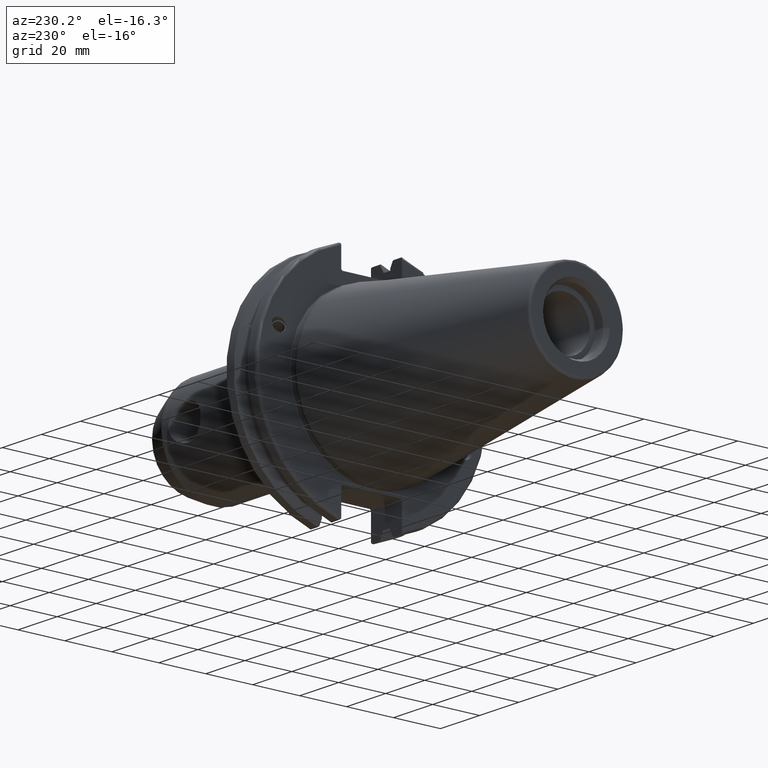
[diagram: clean part render]
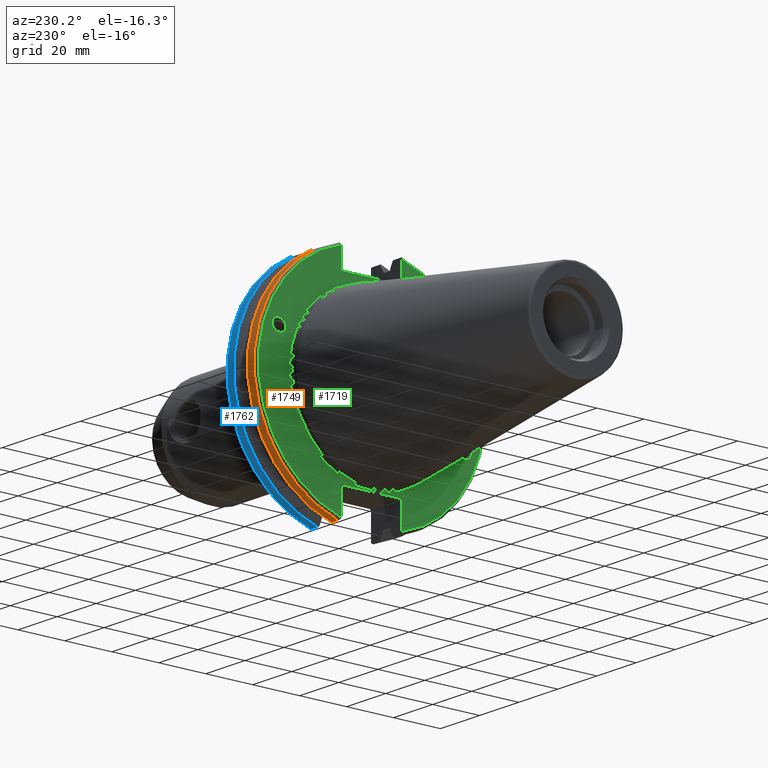
[diagram: same view with three faces highlighted in distinct colors, each labeled with its STEP entity id]
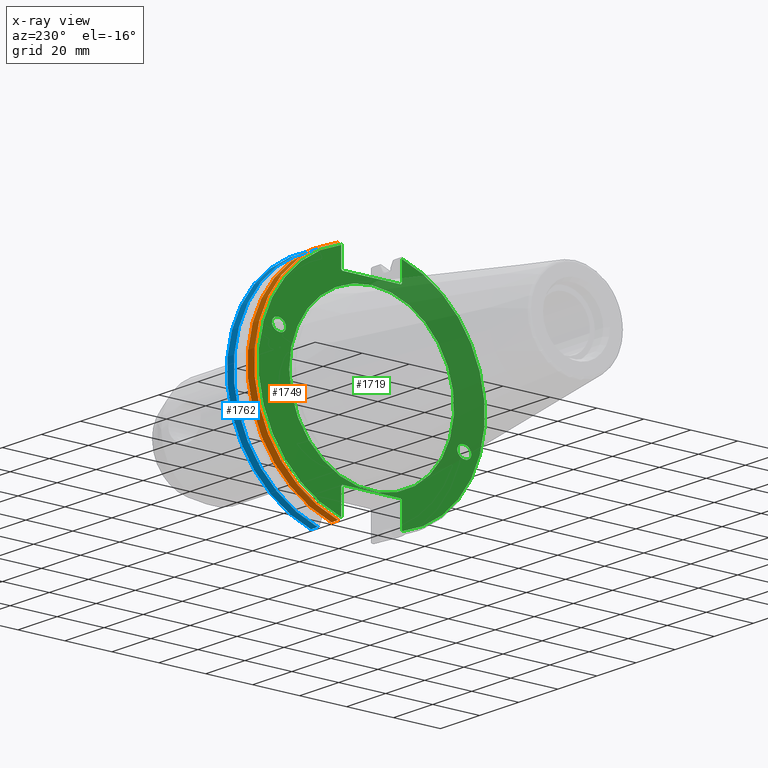
[diagram: x-ray of the same camera — body ghosted, the three highlighted faces saturated]
A machine part, auxiliary view with three faces highlighted in distinct colors.
The next image is the same camera in x-ray (body ghosted, the three faces saturated) — at least one of them is partly hidden behind the body in this view.
Their STEP definitions:

[orange] entity #1749 — the highlighted cylindrical surface (partial cylindrical patch) has radius 49.2125 mm, axis along (1, 0, 0).
#191=LINE('',#3523,#285);
#203=LINE('',#3579,#297);
#285=VECTOR('',#2350,10.);
#297=VECTOR('',#2410,10.);
#387=CIRCLE('',#1926,49.2125);
#402=CIRCLE('',#1959,49.2125);
#435=CYLINDRICAL_SURFACE('',#1958,49.2125);
#513=FACE_OUTER_BOUND('',#621,.T.);
#621=EDGE_LOOP('',(#1600,#1601,#1602,#1603));
#851=VERTEX_POINT('',#3496);
#852=VERTEX_POINT('',#3505);
#853=VERTEX_POINT('',#3522);
#864=VERTEX_POINT('',#3575);
#1092=EDGE_CURVE('',#851,#852,#387,.T.);
#1095=EDGE_CURVE('',#852,#853,#191,.T.);
#1120=EDGE_CURVE('',#864,#851,#203,.T.);
#1127=EDGE_CURVE('',#853,#864,#402,.T.);
#1600=ORIENTED_EDGE('',*,*,#1092,.F.);
#1601=ORIENTED_EDGE('',*,*,#1120,.F.);
#1602=ORIENTED_EDGE('',*,*,#1127,.F.);
#1603=ORIENTED_EDGE('',*,*,#1095,.F.);
#1749=ADVANCED_FACE('',(#513),#435,.T.);
#1926=AXIS2_PLACEMENT_3D('',#3506,#2346,#2347);
#1958=AXIS2_PLACEMENT_3D('',#3593,#2425,#2426);
#1959=AXIS2_PLACEMENT_3D('',#3594,#2427,#2428);
#2346=DIRECTION('center_axis',(-1.,0.,0.));
#2347=DIRECTION('ref_axis',(0.,1.,-6.12323399573677E-17));
#2350=DIRECTION('',(1.,0.,0.));
#2410=DIRECTION('',(-1.,0.,0.));
#2425=DIRECTION('center_axis',(1.,0.,0.));
#2426=DIRECTION('ref_axis',(0.,1.,0.));
#2427=DIRECTION('center_axis',(1.,0.,0.));
#2428=DIRECTION('ref_axis',(0.,0.,-1.));
#3496=CARTESIAN_POINT('',(4.175,13.4317035994433,47.3440544806494));
#3505=CARTESIAN_POINT('',(4.175,13.4317035994433,-47.3440544806494));
#3506=CARTESIAN_POINT('Origin',(4.175,0.,0.));
#3522=CARTESIAN_POINT('',(7.60799096595127,13.4317035994433,-47.3440544806494));
#3523=CARTESIAN_POINT('',(5.39149548297564,13.4317035994433,-47.3440544806494));
#3575=CARTESIAN_POINT('',(7.60799096595127,13.4317035994433,47.3440544806494));
#3579=CARTESIAN_POINT('',(5.39149548297564,13.4317035994433,47.3440544806494));
#3593=CARTESIAN_POINT('Origin',(5.39149548297564,0.,0.));
#3594=CARTESIAN_POINT('Origin',(7.60799096595127,0.,0.));

[blue] entity #1762 — the highlighted cylindrical surface (partial cylindrical patch) has radius 49.2125 mm, axis along (1, 0, 0).
#174=LINE('',#3369,#268);
#202=LINE('',#3573,#296);
#268=VECTOR('',#2305,10.);
#296=VECTOR('',#2407,10.);
#356=CIRCLE('',#1869,49.2125);
#383=CIRCLE('',#1912,49.2125);
#439=CYLINDRICAL_SURFACE('',#1982,49.2125);
#526=FACE_OUTER_BOUND('',#635,.T.);
#635=EDGE_LOOP('',(#1668,#1669,#1670,#1671));
#786=VERTEX_POINT('',#3221);
#787=VERTEX_POINT('',#3225);
#828=VERTEX_POINT('',#3348);
#829=VERTEX_POINT('',#3357);
#1000=EDGE_CURVE('',#787,#786,#356,.T.);
#1054=EDGE_CURVE('',#828,#829,#383,.T.);
#1057=EDGE_CURVE('',#787,#828,#174,.T.);
#1118=EDGE_CURVE('',#829,#786,#202,.T.);
#1668=ORIENTED_EDGE('',*,*,#1054,.F.);
#1669=ORIENTED_EDGE('',*,*,#1057,.F.);
#1670=ORIENTED_EDGE('',*,*,#1000,.T.);
#1671=ORIENTED_EDGE('',*,*,#1118,.F.);
#1762=ADVANCED_FACE('',(#526),#439,.T.);
#1869=AXIS2_PLACEMENT_3D('',#3226,#2193,#2194);
#1912=AXIS2_PLACEMENT_3D('',#3358,#2300,#2301);
#1982=AXIS2_PLACEMENT_3D('',#3624,#2476,#2477);
#2193=DIRECTION('center_axis',(1.,0.,0.));
#2194=DIRECTION('ref_axis',(0.,0.,-1.));
#2300=DIRECTION('center_axis',(1.,0.,0.));
#2301=DIRECTION('ref_axis',(0.,1.,-6.12323399573677E-17));
#2305=DIRECTION('',(1.,0.,0.));
#2407=DIRECTION('',(-1.,0.,0.));
#2476=DIRECTION('center_axis',(1.,0.,0.));
#2477=DIRECTION('ref_axis',(0.,1.,0.));
#3221=CARTESIAN_POINT('',(14.6602090340487,13.4317035994433,47.3440544806494));
#3225=CARTESIAN_POINT('',(14.6602090340487,13.4317035994433,-47.3440544806494));
#3226=CARTESIAN_POINT('Origin',(14.6602090340487,0.,0.));
#3348=CARTESIAN_POINT('',(18.05,13.4317035994433,-47.3440544806494));
#3357=CARTESIAN_POINT('',(18.05,13.4317035994433,47.3440544806494));
#3358=CARTESIAN_POINT('Origin',(18.05,0.,0.));
#3369=CARTESIAN_POINT('',(16.8551045170244,13.4317035994433,-47.3440544806494));
#3573=CARTESIAN_POINT('',(16.8551045170244,13.4317035994433,47.3440544806494));
#3624=CARTESIAN_POINT('Origin',(16.8551045170244,0.,0.));

[green] entity #1719 — the highlighted planar face has unit normal (-1, 0, 0).
#31=ELLIPSE('',#1848,3.05193647190364,2.5);
#32=ELLIPSE('',#1887,3.05193647190364,2.5);
#72=FACE_BOUND('',#588,.T.);
#73=FACE_BOUND('',#589,.T.);
#74=FACE_BOUND('',#590,.T.);
#90=PLANE('',#1905);
#162=LINE('',#3307,#256);
#163=LINE('',#3309,#257);
#164=LINE('',#3311,#258);
#165=LINE('',#3313,#259);
#166=LINE('',#3315,#260);
#167=LINE('',#3319,#261);
#168=LINE('',#3321,#262);
#169=LINE('',#3323,#263);
#170=LINE('',#3325,#264);
#171=LINE('',#3326,#265);
#256=VECTOR('',#2279,10.);
#257=VECTOR('',#2280,10.);
#258=VECTOR('',#2281,10.);
#259=VECTOR('',#2282,10.);
#260=VECTOR('',#2283,10.);
#261=VECTOR('',#2286,10.);
#262=VECTOR('',#2287,10.);
#263=VECTOR('',#2288,10.);
#264=VECTOR('',#2289,10.);
#265=VECTOR('',#2290,10.);
#375=CIRCLE('',#1901,35.125);
#376=CIRCLE('',#1902,35.125);
#379=CIRCLE('',#1906,48.2125);
#380=CIRCLE('',#1907,48.2125);
#483=FACE_OUTER_BOUND('',#587,.T.);
#587=EDGE_LOOP('',(#1417,#1418,#1419,#1420,#1421,#1422,#1423,#1424,#1425,
#1426,#1427,#1428));
#588=EDGE_LOOP('',(#1429));
#589=EDGE_LOOP('',(#1430));
#590=EDGE_LOOP('',(#1431,#1432));
#755=VERTEX_POINT('',#2960);
#800=VERTEX_POINT('',#3267);
#809=VERTEX_POINT('',#3294);
#810=VERTEX_POINT('',#3296);
#812=VERTEX_POINT('',#3303);
#813=VERTEX_POINT('',#3304);
#814=VERTEX_POINT('',#3306);
#815=VERTEX_POINT('',#3308);
#816=VERTEX_POINT('',#3310);
#817=VERTEX_POINT('',#3312);
#818=VERTEX_POINT('',#3314);
#819=VERTEX_POINT('',#3316);
#820=VERTEX_POINT('',#3318);
#821=VERTEX_POINT('',#3320);
#822=VERTEX_POINT('',#3322);
#823=VERTEX_POINT('',#3324);
#961=EDGE_CURVE('',#755,#755,#31,.T.);
#1019=EDGE_CURVE('',#800,#800,#32,.T.);
#1032=EDGE_CURVE('',#809,#810,#375,.T.);
#1033=EDGE_CURVE('',#810,#809,#376,.T.);
#1036=EDGE_CURVE('',#812,#813,#379,.T.);
#1037=EDGE_CURVE('',#812,#814,#162,.T.);
#1038=EDGE_CURVE('',#815,#814,#163,.T.);
#1039=EDGE_CURVE('',#815,#816,#164,.T.);
#1040=EDGE_CURVE('',#817,#816,#165,.T.);
#1041=EDGE_CURVE('',#817,#818,#166,.T.);
#1042=EDGE_CURVE('',#819,#818,#380,.T.);
#1043=EDGE_CURVE('',#819,#820,#167,.T.);
#1044=EDGE_CURVE('',#821,#820,#168,.T.);
#1045=EDGE_CURVE('',#821,#822,#169,.T.);
#1046=EDGE_CURVE('',#823,#822,#170,.T.);
#1047=EDGE_CURVE('',#823,#813,#171,.T.);
#1417=ORIENTED_EDGE('',*,*,#1036,.F.);
#1418=ORIENTED_EDGE('',*,*,#1037,.T.);
#1419=ORIENTED_EDGE('',*,*,#1038,.F.);
#1420=ORIENTED_EDGE('',*,*,#1039,.T.);
#1421=ORIENTED_EDGE('',*,*,#1040,.F.);
#1422=ORIENTED_EDGE('',*,*,#1041,.T.);
#1423=ORIENTED_EDGE('',*,*,#1042,.F.);
#1424=ORIENTED_EDGE('',*,*,#1043,.T.);
#1425=ORIENTED_EDGE('',*,*,#1044,.F.);
#1426=ORIENTED_EDGE('',*,*,#1045,.T.);
#1427=ORIENTED_EDGE('',*,*,#1046,.F.);
#1428=ORIENTED_EDGE('',*,*,#1047,.T.);
#1429=ORIENTED_EDGE('',*,*,#961,.T.);
#1430=ORIENTED_EDGE('',*,*,#1019,.T.);
#1431=ORIENTED_EDGE('',*,*,#1033,.F.);
#1432=ORIENTED_EDGE('',*,*,#1032,.F.);
#1719=ADVANCED_FACE('',(#483,#72,#73,#74),#90,.T.);
#1848=AXIS2_PLACEMENT_3D('',#2962,#2141,#2142);
#1887=AXIS2_PLACEMENT_3D('',#3269,#2235,#2236);
#1901=AXIS2_PLACEMENT_3D('',#3297,#2267,#2268);
#1902=AXIS2_PLACEMENT_3D('',#3298,#2269,#2270);
#1905=AXIS2_PLACEMENT_3D('',#3302,#2275,#2276);
#1906=AXIS2_PLACEMENT_3D('',#3305,#2277,#2278);
#1907=AXIS2_PLACEMENT_3D('',#3317,#2284,#2285);
#2141=DIRECTION('center_axis',(1.,0.,0.));
#2142=DIRECTION('ref_axis',(0.,-0.939692620785908,-0.342020143325668));
#2235=DIRECTION('center_axis',(1.,0.,0.));
#2236=DIRECTION('ref_axis',(0.,0.939692620785908,0.342020143325669));
#2267=DIRECTION('center_axis',(-1.,0.,0.));
#2268=DIRECTION('ref_axis',(0.,-1.,1.83697019872103E-16));
#2269=DIRECTION('center_axis',(-1.,0.,0.));
#2270=DIRECTION('ref_axis',(0.,-1.,1.83697019872103E-16));
#2275=DIRECTION('center_axis',(-1.,0.,0.));
#2276=DIRECTION('ref_axis',(0.,0.,1.));
#2277=DIRECTION('center_axis',(1.,0.,0.));
#2278=DIRECTION('ref_axis',(0.,-1.,1.60812264967664E-16));
#2279=DIRECTION('',(0.,0.,-1.));
#2280=DIRECTION('',(0.,-0.707106781186549,0.707106781186546));
#2281=DIRECTION('',(0.,1.,0.));
#2282=DIRECTION('',(0.,-0.707106781186549,-0.707106781186546));
#2283=DIRECTION('',(0.,0.,1.));
#2284=DIRECTION('center_axis',(1.,0.,0.));
#2285=DIRECTION('ref_axis',(0.,1.,-6.12323399573677E-17));
#2286=DIRECTION('',(0.,0.,1.));
#2287=DIRECTION('',(0.,0.707106781186549,-0.707106781186546));
#2288=DIRECTION('',(0.,-1.,0.));
#2289=DIRECTION('',(0.,0.707106781186549,0.707106781186546));
#2290=DIRECTION('',(0.,0.,-1.));
#2960=CARTESIAN_POINT('',(3.175,-36.5992078912529,-13.3210222701368));
#2962=CARTESIAN_POINT('Origin',(3.175,-39.4670900730082,-14.3648460196781));
#3267=CARTESIAN_POINT('',(3.175,36.5992078912529,13.3210222701368));
#3269=CARTESIAN_POINT('Origin',(3.175,39.4670900730082,14.3648460196781));
#3294=CARTESIAN_POINT('',(3.175,-4.30157188200508E-15,35.125));
#3296=CARTESIAN_POINT('',(3.175,35.125,-1.07539297050127E-14));
#3297=CARTESIAN_POINT('Origin',(3.175,0.,0.));
#3298=CARTESIAN_POINT('Origin',(3.175,0.,0.));
#3302=CARTESIAN_POINT('Origin',(3.175,49.2125,0.));
#3303=CARTESIAN_POINT('',(3.175,-12.95,46.4407434937254));
#3304=CARTESIAN_POINT('',(3.175,-12.95,-46.4407434937254));
#3305=CARTESIAN_POINT('Origin',(3.175,0.,0.));
#3306=CARTESIAN_POINT('',(3.175,-12.95,38.219));
#3307=CARTESIAN_POINT('',(3.175,-12.95,18.8595));
#3308=CARTESIAN_POINT('',(3.175,-12.45,37.719));
#3309=CARTESIAN_POINT('',(3.175,12.2703750000001,12.998625));
#3310=CARTESIAN_POINT('',(3.175,12.45,37.719));
#3311=CARTESIAN_POINT('',(3.175,24.60625,37.719));
#3312=CARTESIAN_POINT('',(3.175,12.95,38.219));
#3313=CARTESIAN_POINT('',(3.175,12.335875,37.604875));
#3314=CARTESIAN_POINT('',(3.175,12.95,46.4407434937254));
#3315=CARTESIAN_POINT('',(3.175,12.95,18.8595));
#3316=CARTESIAN_POINT('',(3.175,12.95,-46.4407434937254));
#3317=CARTESIAN_POINT('Origin',(3.175,0.,0.));
#3318=CARTESIAN_POINT('',(3.175,12.95,-35.806));
#3319=CARTESIAN_POINT('',(3.175,12.95,-17.653));
#3320=CARTESIAN_POINT('',(3.175,12.45,-35.306));
#3321=CARTESIAN_POINT('',(3.175,12.939125,-35.795125));
#3322=CARTESIAN_POINT('',(3.175,-12.45,-35.306));
#3323=CARTESIAN_POINT('',(3.175,24.60625,-35.306));
#3324=CARTESIAN_POINT('',(3.175,-12.95,-35.806));
#3325=CARTESIAN_POINT('',(3.175,11.6671250000001,-11.188875));
#3326=CARTESIAN_POINT('',(3.175,-12.95,-17.653));